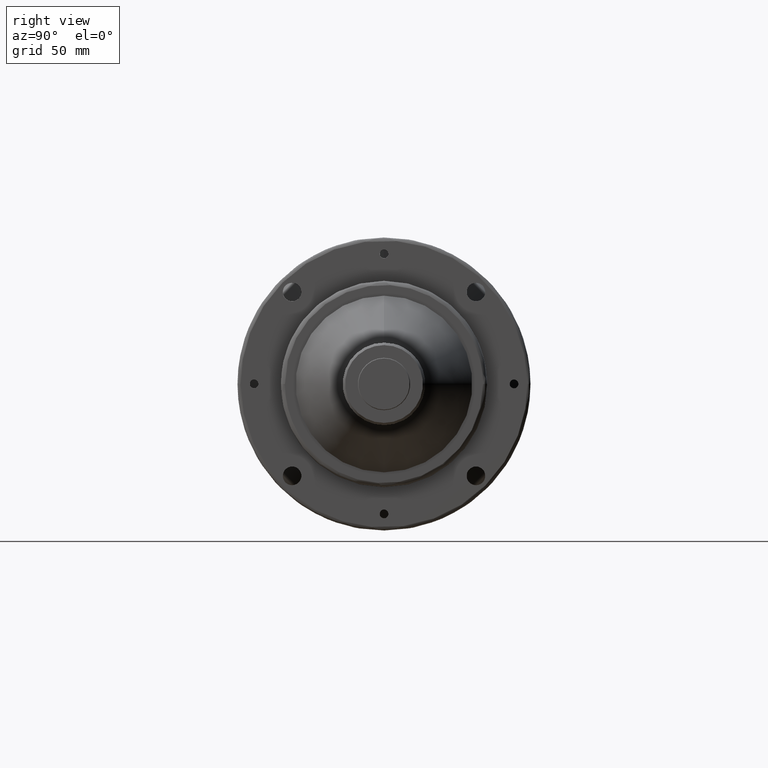
[diagram: clean part render]
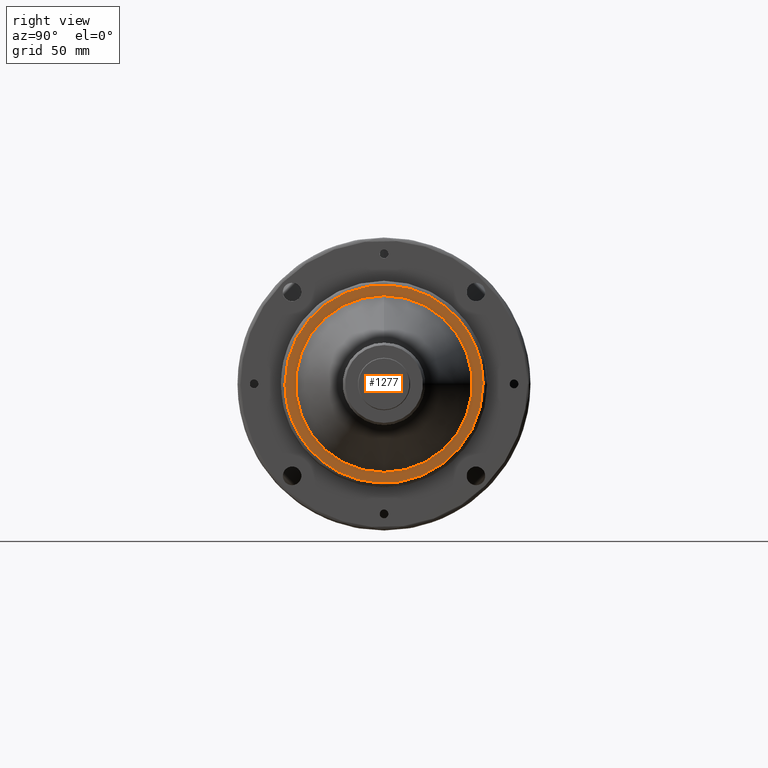
[diagram: same view with one face highlighted and labeled with its STEP entity id]
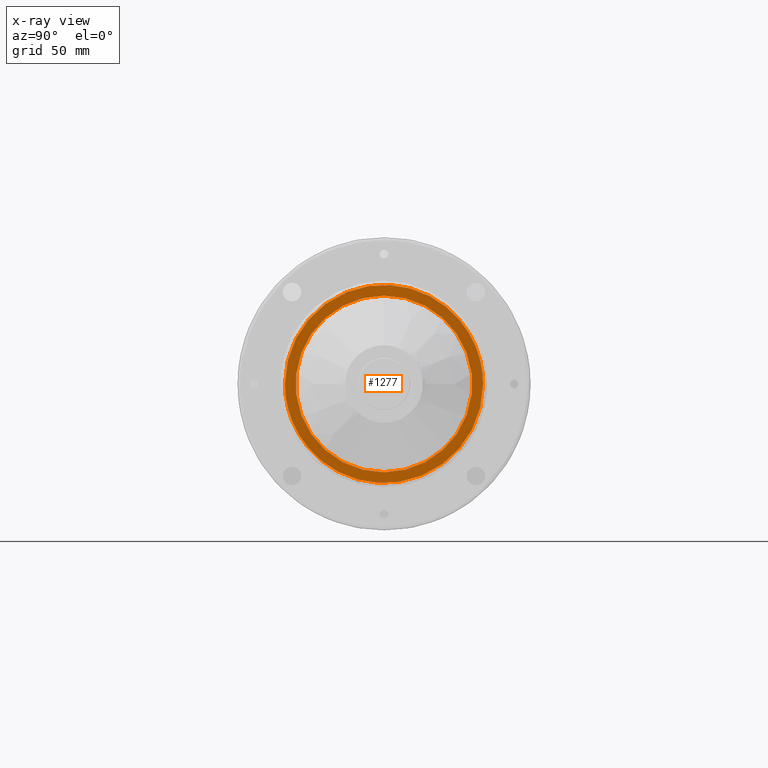
[diagram: x-ray of the same camera — body ghosted, the highlighted face saturated]
A machine part, right view. The second image highlights one B-rep face of the part: STEP entity #1277.
The next image is the same camera in x-ray: the body ghosted, the highlighted face saturated — about 0% of this face is hidden behind the body in this view.
In plain terms, the highlighted planar face has unit normal (1, 0, 0).
Its self-contained STEP definition (entity closure, byte-faithful):
#6 = CARTESIAN_POINT ( 'NONE',  ( 12.45000000019109400, -47.99999999121971700, 0.0000000000000000000 ) ) ;
#88 = EDGE_CURVE ( 'NONE', #217, #1067, #3463, .T. ) ;
#175 = VERTEX_POINT ( 'NONE', #2752 ) ;
#217 = VERTEX_POINT ( 'NONE', #2362 ) ;
#662 =( BOUNDED_CURVE ( )  B_SPLINE_CURVE ( 3, ( #6, #2383, #998, #3008 ),
 .UNSPECIFIED., .F., .F. ) 
 B_SPLINE_CURVE_WITH_KNOTS ( ( 4, 4 ),
 ( 0.0000000000000000000, 1.000000000000000000 ),
 .UNSPECIFIED. ) 
 CURVE ( )  GEOMETRIC_REPRESENTATION_ITEM ( )  RATIONAL_B_SPLINE_CURVE ( ( 0.9565783021300889900, 0.3188594340433627500, 0.3188594340433627500, 0.9565783021300889900 ) ) 
 REPRESENTATION_ITEM ( '' )  );
#673 = DIRECTION ( 'NONE',  ( -1.000000000000000000, 0.0000000000000000000, -2.002337895267256500E-016 ) ) ;
#740 = VERTEX_POINT ( 'NONE', #3225 ) ;
#779 = FACE_OUTER_BOUND ( 'NONE', #3649, .T. ) ;
#808 = EDGE_CURVE ( 'NONE', #740, #175, #1976, .T. ) ;
#895 = AXIS2_PLACEMENT_3D ( 'NONE', #3500, #2521, #3525 ) ;
#996 = CARTESIAN_POINT ( 'NONE',  ( 12.45000000019109400, -47.99999999121971700, 0.0000000000000000000 ) ) ;
#998 = CARTESIAN_POINT ( 'NONE',  ( 12.45000000031849100, 48.00000000129863100, 96.00000000187749500 ) ) ;
#1067 = VERTEX_POINT ( 'NONE', #4136 ) ;
#1158 = FACE_BOUND ( 'NONE', #3514, .T. ) ;
#1272 = DIRECTION ( 'NONE',  ( -2.025469504981434200E-016, 0.0000000000000000000, 1.000000000000000000 ) ) ;
#1277 = ADVANCED_FACE ( 'NONE', ( #1158, #779 ), #3541, .T. ) ;
#1341 = CARTESIAN_POINT ( 'NONE',  ( 12.45000000031849300, -48.00000000129864500, -96.00000000187753800 ) ) ;
#1554 = ORIENTED_EDGE ( 'NONE', *, *, #2294, .F. ) ;
#1761 = EDGE_CURVE ( 'NONE', #1067, #217, #4163, .T. ) ;
#1783 = ORIENTED_EDGE ( 'NONE', *, *, #808, .F. ) ;
#1976 =( BOUNDED_CURVE ( )  B_SPLINE_CURVE ( 3, ( #2043, #2074, #1341, #996 ),
 .UNSPECIFIED., .F., .F. ) 
 B_SPLINE_CURVE_WITH_KNOTS ( ( 4, 4 ),
 ( 0.0000000000000000000, 1.000000000000000000 ),
 .UNSPECIFIED. ) 
 CURVE ( )  GEOMETRIC_REPRESENTATION_ITEM ( )  RATIONAL_B_SPLINE_CURVE ( ( 0.9565783021300869900, 0.3188594340433620300, 0.3188594340433620300, 0.9565783021300869900 ) ) 
 REPRESENTATION_ITEM ( '' )  );
#2024 = CARTESIAN_POINT ( 'NONE',  ( 12.45000000000007200, 0.0000000000000000000, -1.001935137784060500E-014 ) ) ;
#2043 = CARTESIAN_POINT ( 'NONE',  ( 12.45000000019109400, 47.99999999121971700, 0.0000000000000000000 ) ) ;
#2074 = CARTESIAN_POINT ( 'NONE',  ( 12.45000000031849300, 48.00000000129864500, -96.00000000187753800 ) ) ;
#2294 = EDGE_CURVE ( 'NONE', #175, #740, #662, .T. ) ;
#2362 = CARTESIAN_POINT ( 'NONE',  ( 12.45000000000005800, 0.0000000000000000000, 42.82274977999996700 ) ) ;
#2383 = CARTESIAN_POINT ( 'NONE',  ( 12.45000000031849100, -48.00000000129863100, 96.00000000187749500 ) ) ;
#2521 = DIRECTION ( 'NONE',  ( 1.000000000000000000, 0.0000000000000000000, 0.0000000000000000000 ) ) ;
#2752 = CARTESIAN_POINT ( 'NONE',  ( 12.45000000019109400, -47.99999999121971700, 0.0000000000000000000 ) ) ;
#2870 = ORIENTED_EDGE ( 'NONE', *, *, #88, .T. ) ;
#2945 = CARTESIAN_POINT ( 'NONE',  ( 12.45000000000007200, 0.0000000000000000000, -1.001935137784060500E-014 ) ) ;
#3008 = CARTESIAN_POINT ( 'NONE',  ( 12.45000000019109400, 47.99999999121971700, 0.0000000000000000000 ) ) ;
#3137 = AXIS2_PLACEMENT_3D ( 'NONE', #2945, #3591, #1272 ) ;
#3225 = CARTESIAN_POINT ( 'NONE',  ( 12.45000000019109400, 47.99999999121971700, 0.0000000000000000000 ) ) ;
#3415 = ORIENTED_EDGE ( 'NONE', *, *, #1761, .T. ) ;
#3422 = DIRECTION ( 'NONE',  ( -2.025469504981434200E-016, 0.0000000000000000000, 1.000000000000000000 ) ) ;
#3445 = AXIS2_PLACEMENT_3D ( 'NONE', #2024, #673, #3422 ) ;
#3463 = CIRCLE ( 'NONE', #3137, 42.82274977999996700 ) ;
#3500 = CARTESIAN_POINT ( 'NONE',  ( 12.45000000000000100, -48.57600000000000100, -48.57600000000000100 ) ) ;
#3514 = EDGE_LOOP ( 'NONE', ( #2870, #3415 ) ) ;
#3525 = DIRECTION ( 'NONE',  ( 0.0000000000000000000, 1.000000000000000000, 0.0000000000000000000 ) ) ;
#3541 = PLANE ( 'NONE',  #895 ) ;
#3591 = DIRECTION ( 'NONE',  ( -1.000000000000000000, 0.0000000000000000000, -2.002337895267256500E-016 ) ) ;
#3649 = EDGE_LOOP ( 'NONE', ( #1554, #1783 ) ) ;
#4136 = CARTESIAN_POINT ( 'NONE',  ( 12.45000000000007900, 5.244274344876499400E-015, -42.82274977999998100 ) ) ;
#4163 = CIRCLE ( 'NONE', #3445, 42.82274977999996700 ) ;